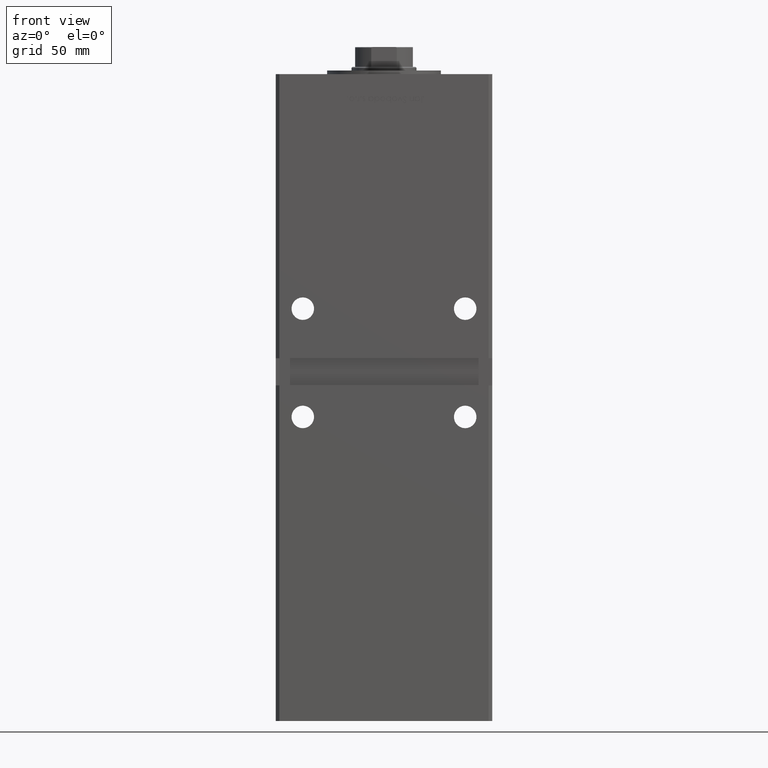
[diagram: clean part render]
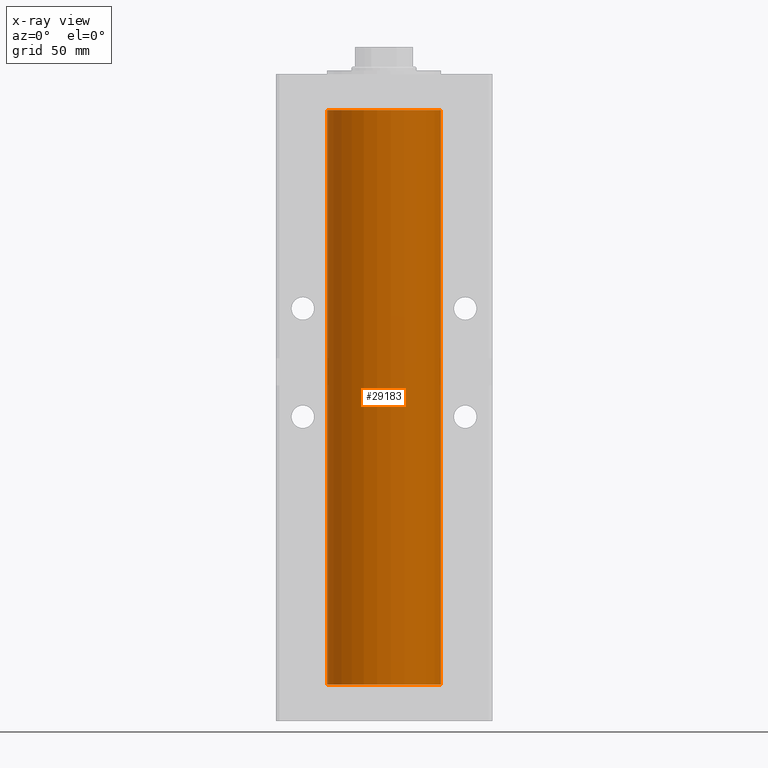
[diagram: x-ray — body ghosted, one internal face saturated and labeled with its STEP entity id]
A machine part, front view, then the same camera in x-ray: the body is ghosted and one INTERNAL B-rep face — a face not visible from any outside direction — is saturated and labeled: STEP entity #29183.
In plain terms, the highlighted cylindrical surface (partial cylindrical patch) has radius 31.5 mm, axis along (-0, -0, -1).
Its self-contained STEP definition (entity closure, byte-faithful):
#548 = VERTEX_POINT ( 'NONE', #31803 ) ;
#1422 = CARTESIAN_POINT ( 'NONE',  ( -31.50000000000000000, 0.000000000000000000, 318.5000000000000000 ) ) ;
#4277 = CYLINDRICAL_SURFACE ( 'NONE', #33614, 31.50000000000000000 ) ;
#5117 = EDGE_CURVE ( 'NONE', #548, #45720, #15214, .T. ) ;
#5374 = EDGE_CURVE ( 'NONE', #50165, #7027, #52959, .T. ) ;
#7027 = VERTEX_POINT ( 'NONE', #43222 ) ;
#8181 = ORIENTED_EDGE ( 'NONE', *, *, #47027, .F. ) ;
#12060 = FACE_OUTER_BOUND ( 'NONE', #36812, .T. ) ;
#12777 = EDGE_CURVE ( 'NONE', #7027, #45720, #30308, .T. ) ;
#15214 = CIRCLE ( 'NONE', #17814, 31.50000000000000000 ) ;
#17814 = AXIS2_PLACEMENT_3D ( 'NONE', #51373, #22646, #30436 ) ;
#22073 = AXIS2_PLACEMENT_3D ( 'NONE', #38952, #34674, #46487 ) ;
#22193 = VECTOR ( 'NONE', #47216, 1000.000000000000000 ) ;
#22646 = DIRECTION ( 'NONE',  ( -0.000000000000000000, 0.000000000000000000, 1.000000000000000000 ) ) ;
#24701 = CARTESIAN_POINT ( 'NONE',  ( 0.000000000000000000, 0.000000000000000000, 318.5000000000000000 ) ) ;
#29183 = ADVANCED_FACE ( 'NONE', ( #12060 ), #4277, .F. ) ;
#30308 = LINE ( 'NONE', #42918, #22193 ) ;
#30436 = DIRECTION ( 'NONE',  ( 1.000000000000000000, 0.000000000000000000, 0.000000000000000000 ) ) ;
#31803 = CARTESIAN_POINT ( 'NONE',  ( -31.50000000000000000, 0.000000000000000000, 0.000000000000000000 ) ) ;
#31989 = CARTESIAN_POINT ( 'NONE',  ( 31.50000000000000000, 3.857637417314162689E-15, 0.000000000000000000 ) ) ;
#32392 = CARTESIAN_POINT ( 'NONE',  ( -31.50000000000000000, 0.000000000000000000, 318.5000000000000000 ) ) ;
#32514 = DIRECTION ( 'NONE',  ( -0.000000000000000000, -0.000000000000000000, -1.000000000000000000 ) ) ;
#33170 = DIRECTION ( 'NONE',  ( -0.000000000000000000, -0.000000000000000000, -1.000000000000000000 ) ) ;
#33614 = AXIS2_PLACEMENT_3D ( 'NONE', #24701, #32514, #44322 ) ;
#34674 = DIRECTION ( 'NONE',  ( -0.000000000000000000, 0.000000000000000000, 1.000000000000000000 ) ) ;
#34982 = ORIENTED_EDGE ( 'NONE', *, *, #5117, .F. ) ;
#35752 = VECTOR ( 'NONE', #33170, 1000.000000000000000 ) ;
#36812 = EDGE_LOOP ( 'NONE', ( #47163, #38577, #34982, #8181 ) ) ;
#38577 = ORIENTED_EDGE ( 'NONE', *, *, #12777, .T. ) ;
#38952 = CARTESIAN_POINT ( 'NONE',  ( 0.000000000000000000, 0.000000000000000000, 318.5000000000000000 ) ) ;
#42918 = CARTESIAN_POINT ( 'NONE',  ( 31.50000000000000000, 3.857637417314162689E-15, 318.5000000000000000 ) ) ;
#43222 = CARTESIAN_POINT ( 'NONE',  ( 31.50000000000000000, 3.857637417314162689E-15, 318.5000000000000000 ) ) ;
#44322 = DIRECTION ( 'NONE',  ( -1.000000000000000000, 0.000000000000000000, 0.000000000000000000 ) ) ;
#45720 = VERTEX_POINT ( 'NONE', #31989 ) ;
#46487 = DIRECTION ( 'NONE',  ( 1.000000000000000000, 0.000000000000000000, 0.000000000000000000 ) ) ;
#47027 = EDGE_CURVE ( 'NONE', #50165, #548, #53035, .T. ) ;
#47163 = ORIENTED_EDGE ( 'NONE', *, *, #5374, .T. ) ;
#47216 = DIRECTION ( 'NONE',  ( -0.000000000000000000, -0.000000000000000000, -1.000000000000000000 ) ) ;
#50165 = VERTEX_POINT ( 'NONE', #1422 ) ;
#51373 = CARTESIAN_POINT ( 'NONE',  ( 0.000000000000000000, 0.000000000000000000, 0.000000000000000000 ) ) ;
#52959 = CIRCLE ( 'NONE', #22073, 31.50000000000000000 ) ;
#53035 = LINE ( 'NONE', #32392, #35752 ) ;